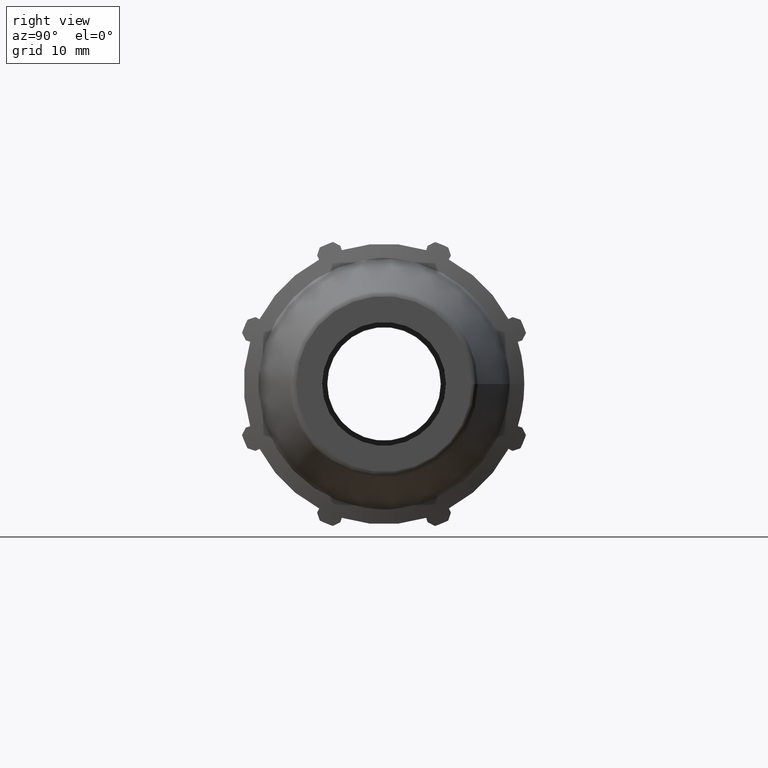
[diagram: clean part render]
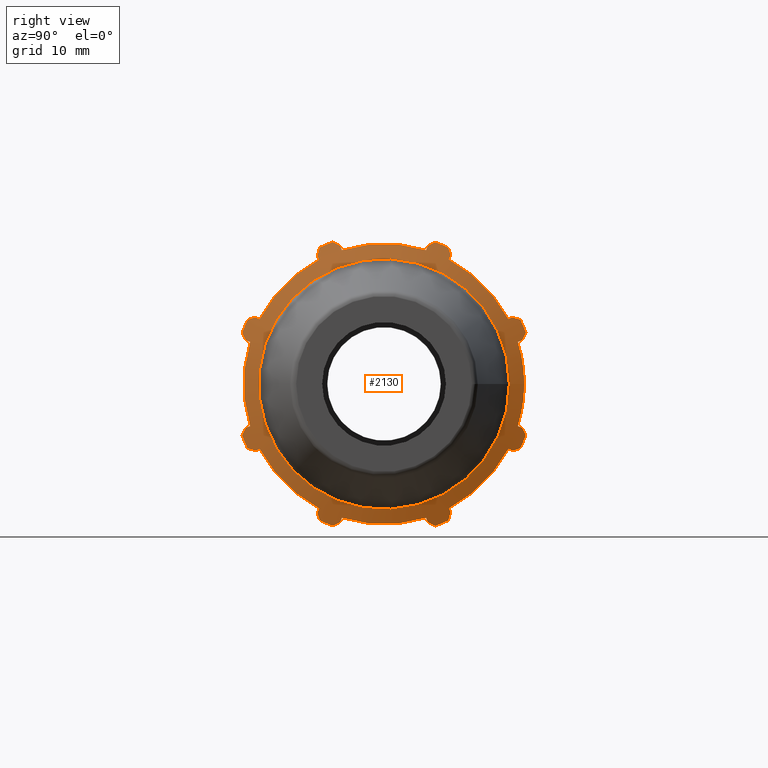
[diagram: same view with one face highlighted and labeled with its STEP entity id]
A machine part, right view. The second image highlights one B-rep face of the part: STEP entity #2130.
In plain terms, the highlighted conical surface has half-angle 72 deg.
Its self-contained STEP definition (entity closure, byte-faithful):
#16=(
BOUNDED_CURVE()
B_SPLINE_CURVE(2,(#3497,#3498,#3499),.UNSPECIFIED.,.F.,.F.)
B_SPLINE_CURVE_WITH_KNOTS((3,3),(0.,0.103440585443577),.UNSPECIFIED.)
CURVE()
GEOMETRIC_REPRESENTATION_ITEM()
RATIONAL_B_SPLINE_CURVE((1.,1.00203522345882,1.00325493632642))
REPRESENTATION_ITEM('')
);
#19=(
BOUNDED_CURVE()
B_SPLINE_CURVE(2,(#3523,#3524,#3525),.UNSPECIFIED.,.F.,.F.)
B_SPLINE_CURVE_WITH_KNOTS((3,3),(0.,0.103440585443561),.UNSPECIFIED.)
CURVE()
GEOMETRIC_REPRESENTATION_ITEM()
RATIONAL_B_SPLINE_CURVE((1.,1.00203522345886,1.00325493632649))
REPRESENTATION_ITEM('')
);
#22=(
BOUNDED_CURVE()
B_SPLINE_CURVE(2,(#3549,#3550,#3551),.UNSPECIFIED.,.F.,.F.)
B_SPLINE_CURVE_WITH_KNOTS((3,3),(0.,0.103440585443582),.UNSPECIFIED.)
CURVE()
GEOMETRIC_REPRESENTATION_ITEM()
RATIONAL_B_SPLINE_CURVE((1.,1.0020352234588,1.00325493632638))
REPRESENTATION_ITEM('')
);
#25=(
BOUNDED_CURVE()
B_SPLINE_CURVE(2,(#3575,#3576,#3577),.UNSPECIFIED.,.F.,.F.)
B_SPLINE_CURVE_WITH_KNOTS((3,3),(0.,0.10344058544357),.UNSPECIFIED.)
CURVE()
GEOMETRIC_REPRESENTATION_ITEM()
RATIONAL_B_SPLINE_CURVE((1.,1.00203522345881,1.0032549363264))
REPRESENTATION_ITEM('')
);
#28=(
BOUNDED_CURVE()
B_SPLINE_CURVE(2,(#3601,#3602,#3603),.UNSPECIFIED.,.F.,.F.)
B_SPLINE_CURVE_WITH_KNOTS((3,3),(0.,0.103440585443579),.UNSPECIFIED.)
CURVE()
GEOMETRIC_REPRESENTATION_ITEM()
RATIONAL_B_SPLINE_CURVE((1.,1.00203522345881,1.0032549363264))
REPRESENTATION_ITEM('')
);
#31=(
BOUNDED_CURVE()
B_SPLINE_CURVE(2,(#3627,#3628,#3629),.UNSPECIFIED.,.F.,.F.)
B_SPLINE_CURVE_WITH_KNOTS((3,3),(0.,0.103440585443574),.UNSPECIFIED.)
CURVE()
GEOMETRIC_REPRESENTATION_ITEM()
RATIONAL_B_SPLINE_CURVE((1.,1.00203522345884,1.00325493632645))
REPRESENTATION_ITEM('')
);
#34=(
BOUNDED_CURVE()
B_SPLINE_CURVE(2,(#3653,#3654,#3655),.UNSPECIFIED.,.F.,.F.)
B_SPLINE_CURVE_WITH_KNOTS((3,3),(0.,0.103440585443567),.UNSPECIFIED.)
CURVE()
GEOMETRIC_REPRESENTATION_ITEM()
RATIONAL_B_SPLINE_CURVE((1.,1.00203522345882,1.00325493632642))
REPRESENTATION_ITEM('')
);
#37=(
BOUNDED_CURVE()
B_SPLINE_CURVE(2,(#3679,#3680,#3681),.UNSPECIFIED.,.F.,.F.)
B_SPLINE_CURVE_WITH_KNOTS((3,3),(0.,0.103440585443564),.UNSPECIFIED.)
CURVE()
GEOMETRIC_REPRESENTATION_ITEM()
RATIONAL_B_SPLINE_CURVE((1.,1.00203522345885,1.00325493632647))
REPRESENTATION_ITEM('')
);
#38=(
BOUNDED_CURVE()
B_SPLINE_CURVE(2,(#3697,#3698,#3699),.UNSPECIFIED.,.F.,.F.)
B_SPLINE_CURVE_WITH_KNOTS((3,3),(0.412861001209201,0.516301586652785),
 .UNSPECIFIED.)
CURVE()
GEOMETRIC_REPRESENTATION_ITEM()
RATIONAL_B_SPLINE_CURVE((1.00325493632634,1.00203522345877,1.))
REPRESENTATION_ITEM('')
);
#39=(
BOUNDED_CURVE()
B_SPLINE_CURVE(2,(#3710,#3711,#3712),.UNSPECIFIED.,.F.,.F.)
B_SPLINE_CURVE_WITH_KNOTS((3,3),(0.412861001209223,0.516301586652783),
 .UNSPECIFIED.)
CURVE()
GEOMETRIC_REPRESENTATION_ITEM()
RATIONAL_B_SPLINE_CURVE((1.00325493632649,1.00203522345886,1.))
REPRESENTATION_ITEM('')
);
#40=(
BOUNDED_CURVE()
B_SPLINE_CURVE(2,(#3719,#3720,#3721),.UNSPECIFIED.,.F.,.F.)
B_SPLINE_CURVE_WITH_KNOTS((3,3),(0.412861001209195,0.516301586652784),
 .UNSPECIFIED.)
CURVE()
GEOMETRIC_REPRESENTATION_ITEM()
RATIONAL_B_SPLINE_CURVE((1.00325493632631,1.00203522345875,1.))
REPRESENTATION_ITEM('')
);
#41=(
BOUNDED_CURVE()
B_SPLINE_CURVE(2,(#3728,#3729,#3730),.UNSPECIFIED.,.F.,.F.)
B_SPLINE_CURVE_WITH_KNOTS((3,3),(0.412861001209219,0.516301586652783),
 .UNSPECIFIED.)
CURVE()
GEOMETRIC_REPRESENTATION_ITEM()
RATIONAL_B_SPLINE_CURVE((1.00325493632647,1.00203522345885,1.))
REPRESENTATION_ITEM('')
);
#42=(
BOUNDED_CURVE()
B_SPLINE_CURVE(2,(#3737,#3738,#3739),.UNSPECIFIED.,.F.,.F.)
B_SPLINE_CURVE_WITH_KNOTS((3,3),(0.412861001209202,0.516301586652782),
 .UNSPECIFIED.)
CURVE()
GEOMETRIC_REPRESENTATION_ITEM()
RATIONAL_B_SPLINE_CURVE((1.00325493632639,1.0020352234588,1.))
REPRESENTATION_ITEM('')
);
#43=(
BOUNDED_CURVE()
B_SPLINE_CURVE(2,(#3746,#3747,#3748),.UNSPECIFIED.,.F.,.F.)
B_SPLINE_CURVE_WITH_KNOTS((3,3),(0.412861001209206,0.516301586652782),
 .UNSPECIFIED.)
CURVE()
GEOMETRIC_REPRESENTATION_ITEM()
RATIONAL_B_SPLINE_CURVE((1.0032549363264,1.0020352234588,1.))
REPRESENTATION_ITEM('')
);
#44=(
BOUNDED_CURVE()
B_SPLINE_CURVE(2,(#3755,#3756,#3757),.UNSPECIFIED.,.F.,.F.)
B_SPLINE_CURVE_WITH_KNOTS((3,3),(0.412861001209206,0.516301586652783),
 .UNSPECIFIED.)
CURVE()
GEOMETRIC_REPRESENTATION_ITEM()
RATIONAL_B_SPLINE_CURVE((1.00325493632642,1.00203522345882,1.))
REPRESENTATION_ITEM('')
);
#45=(
BOUNDED_CURVE()
B_SPLINE_CURVE(2,(#3764,#3765,#3766),.UNSPECIFIED.,.F.,.F.)
B_SPLINE_CURVE_WITH_KNOTS((3,3),(0.412861001209201,0.51630158665278),
 .UNSPECIFIED.)
CURVE()
GEOMETRIC_REPRESENTATION_ITEM()
RATIONAL_B_SPLINE_CURVE((1.00325493632641,1.00203522345882,1.))
REPRESENTATION_ITEM('')
);
#55=CONICAL_SURFACE('',#2321,17.8489960464915,72.);
#123=LINE('',#3492,#267);
#129=LINE('',#3518,#273);
#135=LINE('',#3544,#279);
#141=LINE('',#3570,#285);
#147=LINE('',#3596,#291);
#153=LINE('',#3622,#297);
#159=LINE('',#3648,#303);
#165=LINE('',#3674,#309);
#171=LINE('',#3704,#315);
#172=LINE('',#3714,#316);
#173=LINE('',#3723,#317);
#174=LINE('',#3732,#318);
#175=LINE('',#3741,#319);
#176=LINE('',#3750,#320);
#177=LINE('',#3759,#321);
#178=LINE('',#3768,#322);
#267=VECTOR('',#2670,0.615105401179383);
#273=VECTOR('',#2684,0.615105401179381);
#279=VECTOR('',#2698,0.615105401179381);
#285=VECTOR('',#2712,0.615105401179378);
#291=VECTOR('',#2726,0.615105401179381);
#297=VECTOR('',#2740,0.615105401179379);
#303=VECTOR('',#2754,0.615105401179381);
#309=VECTOR('',#2768,0.615105401179381);
#315=VECTOR('',#2794,0.615105401179385);
#316=VECTOR('',#2801,0.615105401179389);
#317=VECTOR('',#2806,0.615105401179385);
#318=VECTOR('',#2811,0.615105401179389);
#319=VECTOR('',#2816,0.615105401179385);
#320=VECTOR('',#2821,0.615105401179384);
#321=VECTOR('',#2826,0.615105401179385);
#322=VECTOR('',#2831,0.615105401179381);
#477=FACE_BOUND('',#695,.T.);
#560=FACE_OUTER_BOUND('',#694,.T.);
#694=EDGE_LOOP('',(#1712,#1713,#1714,#1715,#1716,#1717,#1718,#1719,#1720,
#1721,#1722,#1723,#1724,#1725,#1726,#1727,#1728,#1729,#1730,#1731,#1732,
#1733,#1734,#1735,#1736,#1737,#1738,#1739,#1740,#1741,#1742,#1743,#1744,
#1745,#1746,#1747,#1748,#1749,#1750,#1751,#1752,#1753,#1754,#1755,#1756,
#1757,#1758,#1759));
#695=EDGE_LOOP('',(#1760));
#816=CIRCLE('',#2322,18.135);
#817=CIRCLE('',#2323,19.5);
#818=CIRCLE('',#2324,18.135);
#819=CIRCLE('',#2325,19.5);
#820=CIRCLE('',#2326,18.135);
#821=CIRCLE('',#2327,19.5);
#822=CIRCLE('',#2328,18.135);
#823=CIRCLE('',#2329,19.5);
#824=CIRCLE('',#2330,18.135);
#825=CIRCLE('',#2331,19.5);
#826=CIRCLE('',#2332,18.135);
#827=CIRCLE('',#2333,19.5);
#828=CIRCLE('',#2334,18.135);
#829=CIRCLE('',#2335,19.5);
#830=CIRCLE('',#2336,18.135);
#831=CIRCLE('',#2337,19.5);
#832=CIRCLE('',#2338,16.1979920929829);
#954=VERTEX_POINT('',#3489);
#955=VERTEX_POINT('',#3491);
#956=VERTEX_POINT('',#3495);
#961=VERTEX_POINT('',#3515);
#962=VERTEX_POINT('',#3517);
#963=VERTEX_POINT('',#3521);
#968=VERTEX_POINT('',#3541);
#969=VERTEX_POINT('',#3543);
#970=VERTEX_POINT('',#3547);
#975=VERTEX_POINT('',#3567);
#976=VERTEX_POINT('',#3569);
#977=VERTEX_POINT('',#3573);
#982=VERTEX_POINT('',#3593);
#983=VERTEX_POINT('',#3595);
#984=VERTEX_POINT('',#3599);
#989=VERTEX_POINT('',#3619);
#990=VERTEX_POINT('',#3621);
#991=VERTEX_POINT('',#3625);
#996=VERTEX_POINT('',#3645);
#997=VERTEX_POINT('',#3647);
#998=VERTEX_POINT('',#3651);
#1003=VERTEX_POINT('',#3671);
#1004=VERTEX_POINT('',#3673);
#1005=VERTEX_POINT('',#3677);
#1010=VERTEX_POINT('',#3694);
#1011=VERTEX_POINT('',#3696);
#1012=VERTEX_POINT('',#3702);
#1013=VERTEX_POINT('',#3707);
#1014=VERTEX_POINT('',#3709);
#1015=VERTEX_POINT('',#3713);
#1016=VERTEX_POINT('',#3716);
#1017=VERTEX_POINT('',#3718);
#1018=VERTEX_POINT('',#3722);
#1019=VERTEX_POINT('',#3725);
#1020=VERTEX_POINT('',#3727);
#1021=VERTEX_POINT('',#3731);
#1022=VERTEX_POINT('',#3734);
#1023=VERTEX_POINT('',#3736);
#1024=VERTEX_POINT('',#3740);
#1025=VERTEX_POINT('',#3743);
#1026=VERTEX_POINT('',#3745);
#1027=VERTEX_POINT('',#3749);
#1028=VERTEX_POINT('',#3752);
#1029=VERTEX_POINT('',#3754);
#1030=VERTEX_POINT('',#3758);
#1031=VERTEX_POINT('',#3761);
#1032=VERTEX_POINT('',#3763);
#1033=VERTEX_POINT('',#3767);
#1034=VERTEX_POINT('',#3771);
#1192=EDGE_CURVE('',#955,#954,#123,.T.);
#1195=EDGE_CURVE('',#956,#954,#16,.T.);
#1202=EDGE_CURVE('',#962,#961,#129,.T.);
#1205=EDGE_CURVE('',#963,#961,#19,.T.);
#1212=EDGE_CURVE('',#969,#968,#135,.T.);
#1215=EDGE_CURVE('',#970,#968,#22,.T.);
#1222=EDGE_CURVE('',#976,#975,#141,.T.);
#1225=EDGE_CURVE('',#977,#975,#25,.T.);
#1232=EDGE_CURVE('',#983,#982,#147,.T.);
#1235=EDGE_CURVE('',#984,#982,#28,.T.);
#1242=EDGE_CURVE('',#990,#989,#153,.T.);
#1245=EDGE_CURVE('',#991,#989,#31,.T.);
#1252=EDGE_CURVE('',#997,#996,#159,.T.);
#1255=EDGE_CURVE('',#998,#996,#34,.T.);
#1262=EDGE_CURVE('',#1004,#1003,#165,.T.);
#1265=EDGE_CURVE('',#1005,#1003,#37,.T.);
#1271=EDGE_CURVE('',#1010,#1011,#38,.T.);
#1274=EDGE_CURVE('',#1010,#1012,#171,.T.);
#1275=EDGE_CURVE('',#1012,#997,#816,.T.);
#1276=EDGE_CURVE('',#998,#1013,#817,.T.);
#1277=EDGE_CURVE('',#1014,#1013,#39,.T.);
#1278=EDGE_CURVE('',#1014,#1015,#172,.T.);
#1279=EDGE_CURVE('',#1015,#1004,#818,.T.);
#1280=EDGE_CURVE('',#1005,#1016,#819,.T.);
#1281=EDGE_CURVE('',#1017,#1016,#40,.T.);
#1282=EDGE_CURVE('',#1017,#1018,#173,.T.);
#1283=EDGE_CURVE('',#1018,#955,#820,.T.);
#1284=EDGE_CURVE('',#956,#1019,#821,.T.);
#1285=EDGE_CURVE('',#1020,#1019,#41,.T.);
#1286=EDGE_CURVE('',#1020,#1021,#174,.T.);
#1287=EDGE_CURVE('',#1021,#962,#822,.T.);
#1288=EDGE_CURVE('',#963,#1022,#823,.T.);
#1289=EDGE_CURVE('',#1023,#1022,#42,.T.);
#1290=EDGE_CURVE('',#1023,#1024,#175,.T.);
#1291=EDGE_CURVE('',#1024,#969,#824,.T.);
#1292=EDGE_CURVE('',#970,#1025,#825,.T.);
#1293=EDGE_CURVE('',#1026,#1025,#43,.T.);
#1294=EDGE_CURVE('',#1026,#1027,#176,.T.);
#1295=EDGE_CURVE('',#1027,#976,#826,.T.);
#1296=EDGE_CURVE('',#977,#1028,#827,.T.);
#1297=EDGE_CURVE('',#1029,#1028,#44,.T.);
#1298=EDGE_CURVE('',#1029,#1030,#177,.T.);
#1299=EDGE_CURVE('',#1030,#983,#828,.T.);
#1300=EDGE_CURVE('',#984,#1031,#829,.T.);
#1301=EDGE_CURVE('',#1032,#1031,#45,.T.);
#1302=EDGE_CURVE('',#1032,#1033,#178,.T.);
#1303=EDGE_CURVE('',#1033,#990,#830,.T.);
#1304=EDGE_CURVE('',#991,#1011,#831,.T.);
#1305=EDGE_CURVE('',#1034,#1034,#832,.T.);
#1712=ORIENTED_EDGE('',*,*,#1271,.F.);
#1713=ORIENTED_EDGE('',*,*,#1274,.T.);
#1714=ORIENTED_EDGE('',*,*,#1275,.T.);
#1715=ORIENTED_EDGE('',*,*,#1252,.T.);
#1716=ORIENTED_EDGE('',*,*,#1255,.F.);
#1717=ORIENTED_EDGE('',*,*,#1276,.T.);
#1718=ORIENTED_EDGE('',*,*,#1277,.F.);
#1719=ORIENTED_EDGE('',*,*,#1278,.T.);
#1720=ORIENTED_EDGE('',*,*,#1279,.T.);
#1721=ORIENTED_EDGE('',*,*,#1262,.T.);
#1722=ORIENTED_EDGE('',*,*,#1265,.F.);
#1723=ORIENTED_EDGE('',*,*,#1280,.T.);
#1724=ORIENTED_EDGE('',*,*,#1281,.F.);
#1725=ORIENTED_EDGE('',*,*,#1282,.T.);
#1726=ORIENTED_EDGE('',*,*,#1283,.T.);
#1727=ORIENTED_EDGE('',*,*,#1192,.T.);
#1728=ORIENTED_EDGE('',*,*,#1195,.F.);
#1729=ORIENTED_EDGE('',*,*,#1284,.T.);
#1730=ORIENTED_EDGE('',*,*,#1285,.F.);
#1731=ORIENTED_EDGE('',*,*,#1286,.T.);
#1732=ORIENTED_EDGE('',*,*,#1287,.T.);
#1733=ORIENTED_EDGE('',*,*,#1202,.T.);
#1734=ORIENTED_EDGE('',*,*,#1205,.F.);
#1735=ORIENTED_EDGE('',*,*,#1288,.T.);
#1736=ORIENTED_EDGE('',*,*,#1289,.F.);
#1737=ORIENTED_EDGE('',*,*,#1290,.T.);
#1738=ORIENTED_EDGE('',*,*,#1291,.T.);
#1739=ORIENTED_EDGE('',*,*,#1212,.T.);
#1740=ORIENTED_EDGE('',*,*,#1215,.F.);
#1741=ORIENTED_EDGE('',*,*,#1292,.T.);
#1742=ORIENTED_EDGE('',*,*,#1293,.F.);
#1743=ORIENTED_EDGE('',*,*,#1294,.T.);
#1744=ORIENTED_EDGE('',*,*,#1295,.T.);
#1745=ORIENTED_EDGE('',*,*,#1222,.T.);
#1746=ORIENTED_EDGE('',*,*,#1225,.F.);
#1747=ORIENTED_EDGE('',*,*,#1296,.T.);
#1748=ORIENTED_EDGE('',*,*,#1297,.F.);
#1749=ORIENTED_EDGE('',*,*,#1298,.T.);
#1750=ORIENTED_EDGE('',*,*,#1299,.T.);
#1751=ORIENTED_EDGE('',*,*,#1232,.T.);
#1752=ORIENTED_EDGE('',*,*,#1235,.F.);
#1753=ORIENTED_EDGE('',*,*,#1300,.T.);
#1754=ORIENTED_EDGE('',*,*,#1301,.F.);
#1755=ORIENTED_EDGE('',*,*,#1302,.T.);
#1756=ORIENTED_EDGE('',*,*,#1303,.T.);
#1757=ORIENTED_EDGE('',*,*,#1242,.T.);
#1758=ORIENTED_EDGE('',*,*,#1245,.F.);
#1759=ORIENTED_EDGE('',*,*,#1304,.T.);
#1760=ORIENTED_EDGE('',*,*,#1305,.F.);
#2130=ADVANCED_FACE('',(#560,#477),#55,.T.);
#2321=AXIS2_PLACEMENT_3D('',#3705,#2795,#2796);
#2322=AXIS2_PLACEMENT_3D('',#3706,#2797,#2798);
#2323=AXIS2_PLACEMENT_3D('',#3708,#2799,#2800);
#2324=AXIS2_PLACEMENT_3D('',#3715,#2802,#2803);
#2325=AXIS2_PLACEMENT_3D('',#3717,#2804,#2805);
#2326=AXIS2_PLACEMENT_3D('',#3724,#2807,#2808);
#2327=AXIS2_PLACEMENT_3D('',#3726,#2809,#2810);
#2328=AXIS2_PLACEMENT_3D('',#3733,#2812,#2813);
#2329=AXIS2_PLACEMENT_3D('',#3735,#2814,#2815);
#2330=AXIS2_PLACEMENT_3D('',#3742,#2817,#2818);
#2331=AXIS2_PLACEMENT_3D('',#3744,#2819,#2820);
#2332=AXIS2_PLACEMENT_3D('',#3751,#2822,#2823);
#2333=AXIS2_PLACEMENT_3D('',#3753,#2824,#2825);
#2334=AXIS2_PLACEMENT_3D('',#3760,#2827,#2828);
#2335=AXIS2_PLACEMENT_3D('',#3762,#2829,#2830);
#2336=AXIS2_PLACEMENT_3D('',#3769,#2832,#2833);
#2337=AXIS2_PLACEMENT_3D('',#3770,#2834,#2835);
#2338=AXIS2_PLACEMENT_3D('',#3772,#2836,#2837);
#2670=DIRECTION('',(-0.309016994374948,-0.285988210106283,0.907038720710245));
#2684=DIRECTION('',(-0.309016994374948,-0.843597432918541,0.43914902750743));
#2698=DIRECTION('',(-0.309016994374948,-0.907038720710245,-0.285988210106283));
#2712=DIRECTION('',(-0.309016994374948,-0.43914902750743,-0.843597432918541));
#2726=DIRECTION('',(-0.309016994374948,0.285988210106283,-0.907038720710245));
#2740=DIRECTION('',(-0.309016994374948,0.843597432918541,-0.43914902750743));
#2754=DIRECTION('',(-0.309016994374948,0.907038720710245,0.285988210106283));
#2768=DIRECTION('',(-0.309016994374948,0.43914902750743,0.843597432918541));
#2794=DIRECTION('',(0.309016994374948,-0.907038720710245,0.285988210106283));
#2795=DIRECTION('center_axis',(-1.,0.,0.));
#2796=DIRECTION('ref_axis',(0.,1.,0.));
#2797=DIRECTION('center_axis',(1.,0.,0.));
#2798=DIRECTION('ref_axis',(0.,-0.953716950748227,-0.300705799504273));
#2799=DIRECTION('center_axis',(1.,0.,0.));
#2800=DIRECTION('ref_axis',(0.,0.,-1.));
#2801=DIRECTION('',(0.309016994374948,-0.843597432918541,-0.43914902750743));
#2802=DIRECTION('center_axis',(1.,0.,0.));
#2803=DIRECTION('ref_axis',(0.,-0.461748613235034,-0.887010833178222));
#2804=DIRECTION('center_axis',(1.,0.,0.));
#2805=DIRECTION('ref_axis',(0.,0.,-1.));
#2806=DIRECTION('',(0.309016994374948,-0.285988210106283,-0.907038720710245));
#2807=DIRECTION('center_axis',(1.,0.,0.));
#2808=DIRECTION('ref_axis',(0.,0.300705799504273,-0.953716950748227));
#2809=DIRECTION('center_axis',(1.,0.,0.));
#2810=DIRECTION('ref_axis',(0.,0.,-1.));
#2811=DIRECTION('',(0.309016994374948,0.43914902750743,-0.843597432918541));
#2812=DIRECTION('center_axis',(1.,0.,0.));
#2813=DIRECTION('ref_axis',(0.,0.887010833178222,-0.461748613235034));
#2814=DIRECTION('center_axis',(1.,0.,0.));
#2815=DIRECTION('ref_axis',(0.,0.,-1.));
#2816=DIRECTION('',(0.309016994374948,0.907038720710245,-0.285988210106283));
#2817=DIRECTION('center_axis',(1.,0.,0.));
#2818=DIRECTION('ref_axis',(0.,0.953716950748227,0.300705799504273));
#2819=DIRECTION('center_axis',(1.,0.,0.));
#2820=DIRECTION('ref_axis',(0.,0.,-1.));
#2821=DIRECTION('',(0.309016994374948,0.843597432918541,0.439149027507429));
#2822=DIRECTION('center_axis',(1.,0.,0.));
#2823=DIRECTION('ref_axis',(0.,0.461748613235034,0.887010833178222));
#2824=DIRECTION('center_axis',(1.,0.,0.));
#2825=DIRECTION('ref_axis',(0.,0.,-1.));
#2826=DIRECTION('',(0.309016994374948,0.285988210106283,0.907038720710245));
#2827=DIRECTION('center_axis',(1.,0.,0.));
#2828=DIRECTION('ref_axis',(0.,-0.300705799504273,0.953716950748227));
#2829=DIRECTION('center_axis',(1.,0.,0.));
#2830=DIRECTION('ref_axis',(0.,0.,-1.));
#2831=DIRECTION('',(0.309016994374948,-0.439149027507429,0.843597432918541));
#2832=DIRECTION('center_axis',(1.,0.,0.));
#2833=DIRECTION('ref_axis',(0.,-0.887010833178222,0.461748613235034));
#2834=DIRECTION('center_axis',(1.,0.,0.));
#2835=DIRECTION('ref_axis',(0.,0.,-1.));
#2836=DIRECTION('center_axis',(1.,0.,0.));
#2837=DIRECTION('ref_axis',(0.,0.,-1.));
#3489=CARTESIAN_POINT('',(58.430549956955,-5.62921256671999,17.8535813180068));
#3491=CARTESIAN_POINT('',(58.6206279792513,-5.45329967400999,17.2956569018191));
#3492=CARTESIAN_POINT('',(58.7135562969467,-5.36729662650883,17.022890083377));
#3495=CARTESIAN_POINT('',(58.1771125938934,-6.6028225067194,18.3480989463421));
#3497=CARTESIAN_POINT('Ctrl Pts',(58.1771125938934,-6.60282250671941,18.3480989463421));
#3498=CARTESIAN_POINT('Ctrl Pts',(58.3089000226854,-6.10608274141362,18.0957940339262));
#3499=CARTESIAN_POINT('Ctrl Pts',(58.430549956955,-5.62921256671999,17.8535813180068));
#3515=CARTESIAN_POINT('',(58.430549956955,-16.6048427970963,8.64393403975984));
#3517=CARTESIAN_POINT('',(58.6206279792513,-16.0859414596871,8.37381110101734));
#3518=CARTESIAN_POINT('',(58.7135562969467,-15.8322528545932,8.24174917210504));
#3521=CARTESIAN_POINT('',(58.1771125938934,-17.6429657563127,8.3051646173678));
#3523=CARTESIAN_POINT('Ctrl Pts',(58.1771125938934,-17.6429657563127,8.30516461736779));
#3524=CARTESIAN_POINT('Ctrl Pts',(58.3089000226854,-17.1133111852839,8.47800615940455));
#3525=CARTESIAN_POINT('Ctrl Pts',(58.430549956955,-16.6048427970963,8.64393403975984));
#3541=CARTESIAN_POINT('',(58.430549956955,-17.8535813180068,-5.62921256671999));
#3543=CARTESIAN_POINT('',(58.6206279792513,-17.2956569018191,-5.45329967400999));
#3544=CARTESIAN_POINT('',(58.7135562969467,-17.022890083377,-5.36729662650883));
#3547=CARTESIAN_POINT('',(58.1771125938934,-18.3480989463421,-6.6028225067194));
#3549=CARTESIAN_POINT('Ctrl Pts',(58.1771125938934,-18.3480989463421,-6.60282250671941));
#3550=CARTESIAN_POINT('Ctrl Pts',(58.3089000226854,-18.0957940339262,-6.10608274141364));
#3551=CARTESIAN_POINT('Ctrl Pts',(58.430549956955,-17.8535813180068,-5.62921256671999));
#3567=CARTESIAN_POINT('',(58.430549956955,-8.64393403975984,-16.6048427970963));
#3569=CARTESIAN_POINT('',(58.6206279792513,-8.37381110101735,-16.0859414596871));
#3570=CARTESIAN_POINT('',(58.7135562969467,-8.24174917210504,-15.8322528545932));
#3573=CARTESIAN_POINT('',(58.1771125938934,-8.3051646173678,-17.6429657563127));
#3575=CARTESIAN_POINT('Ctrl Pts',(58.1771125938934,-8.30516461736779,-17.6429657563127));
#3576=CARTESIAN_POINT('Ctrl Pts',(58.3089000226854,-8.47800615940454,-17.113311185284));
#3577=CARTESIAN_POINT('Ctrl Pts',(58.430549956955,-8.64393403975983,-16.6048427970963));
#3593=CARTESIAN_POINT('',(58.430549956955,5.62921256671999,-17.8535813180068));
#3595=CARTESIAN_POINT('',(58.6206279792513,5.45329967400999,-17.2956569018191));
#3596=CARTESIAN_POINT('',(58.7135562969467,5.36729662650883,-17.022890083377));
#3599=CARTESIAN_POINT('',(58.1771125938934,6.6028225067194,-18.3480989463421));
#3601=CARTESIAN_POINT('Ctrl Pts',(58.1771125938934,6.60282250671941,-18.3480989463421));
#3602=CARTESIAN_POINT('Ctrl Pts',(58.3089000226854,6.10608274141363,-18.0957940339262));
#3603=CARTESIAN_POINT('Ctrl Pts',(58.430549956955,5.62921256671999,-17.8535813180068));
#3619=CARTESIAN_POINT('',(58.430549956955,16.6048427970963,-8.64393403975984));
#3621=CARTESIAN_POINT('',(58.6206279792513,16.0859414596871,-8.37381110101735));
#3622=CARTESIAN_POINT('',(58.7135562969467,15.8322528545932,-8.24174917210504));
#3625=CARTESIAN_POINT('',(58.1771125938934,17.6429657563127,-8.3051646173678));
#3627=CARTESIAN_POINT('Ctrl Pts',(58.1771125938934,17.6429657563127,-8.30516461736779));
#3628=CARTESIAN_POINT('Ctrl Pts',(58.3089000226854,17.113311185284,-8.47800615940454));
#3629=CARTESIAN_POINT('Ctrl Pts',(58.430549956955,16.6048427970963,-8.64393403975984));
#3645=CARTESIAN_POINT('',(58.430549956955,17.8535813180068,5.62921256672));
#3647=CARTESIAN_POINT('',(58.6206279792513,17.2956569018191,5.45329967401));
#3648=CARTESIAN_POINT('',(58.7135562969467,17.022890083377,5.36729662650883));
#3651=CARTESIAN_POINT('',(58.1771125938934,18.3480989463421,6.6028225067194));
#3653=CARTESIAN_POINT('Ctrl Pts',(58.1771125938934,18.3480989463421,6.60282250671942));
#3654=CARTESIAN_POINT('Ctrl Pts',(58.3089000226854,18.0957940339262,6.10608274141361));
#3655=CARTESIAN_POINT('Ctrl Pts',(58.430549956955,17.8535813180068,5.62921256672));
#3671=CARTESIAN_POINT('',(58.430549956955,8.64393403975984,16.6048427970963));
#3673=CARTESIAN_POINT('',(58.6206279792513,8.37381110101734,16.0859414596871));
#3674=CARTESIAN_POINT('',(58.7135562969467,8.24174917210504,15.8322528545932));
#3677=CARTESIAN_POINT('',(58.1771125938934,8.3051646173678,17.6429657563127));
#3679=CARTESIAN_POINT('Ctrl Pts',(58.1771125938934,8.30516461736779,17.6429657563127));
#3680=CARTESIAN_POINT('Ctrl Pts',(58.3089000226854,8.47800615940455,17.1133111852839));
#3681=CARTESIAN_POINT('Ctrl Pts',(58.430549956955,8.64393403975984,16.6048427970963));
#3694=CARTESIAN_POINT('',(58.430549956955,17.8535813180068,-5.62921256671999));
#3696=CARTESIAN_POINT('',(58.1771125938934,18.3480989463421,-6.6028225067194));
#3697=CARTESIAN_POINT('Ctrl Pts',(58.430549956955,17.8535813180068,-5.62921256671999));
#3698=CARTESIAN_POINT('Ctrl Pts',(58.3089000226854,18.0957940339262,-6.10608274141366));
#3699=CARTESIAN_POINT('Ctrl Pts',(58.1771125938934,18.3480989463421,-6.60282250671942));
#3702=CARTESIAN_POINT('',(58.6206279792513,17.2956569018191,-5.45329967400999));
#3704=CARTESIAN_POINT('',(58.7135562969467,17.022890083377,-5.36729662650883));
#3705=CARTESIAN_POINT('Origin',(58.7135562969467,0.,0.));
#3706=CARTESIAN_POINT('Origin',(58.6206279792513,0.,0.));
#3707=CARTESIAN_POINT('',(58.1771125938934,17.6429657563127,8.3051646173678));
#3708=CARTESIAN_POINT('Origin',(58.1771125938934,0.,0.));
#3709=CARTESIAN_POINT('',(58.430549956955,16.6048427970963,8.64393403975984));
#3710=CARTESIAN_POINT('Ctrl Pts',(58.430549956955,16.6048427970963,8.64393403975984));
#3711=CARTESIAN_POINT('Ctrl Pts',(58.3089000226854,17.1133111852839,8.47800615940455));
#3712=CARTESIAN_POINT('Ctrl Pts',(58.1771125938934,17.6429657563127,8.30516461736779));
#3713=CARTESIAN_POINT('',(58.6206279792513,16.0859414596871,8.37381110101734));
#3714=CARTESIAN_POINT('',(58.7135562969467,15.8322528545932,8.24174917210504));
#3715=CARTESIAN_POINT('Origin',(58.6206279792513,0.,0.));
#3716=CARTESIAN_POINT('',(58.1771125938934,6.6028225067194,18.3480989463421));
#3717=CARTESIAN_POINT('Origin',(58.1771125938934,0.,0.));
#3718=CARTESIAN_POINT('',(58.430549956955,5.62921256671999,17.8535813180068));
#3719=CARTESIAN_POINT('Ctrl Pts',(58.430549956955,5.62921256671999,17.8535813180068));
#3720=CARTESIAN_POINT('Ctrl Pts',(58.3089000226854,6.10608274141367,18.0957940339262));
#3721=CARTESIAN_POINT('Ctrl Pts',(58.1771125938934,6.60282250671942,18.3480989463421));
#3722=CARTESIAN_POINT('',(58.6206279792513,5.45329967400999,17.2956569018191));
#3723=CARTESIAN_POINT('',(58.7135562969467,5.36729662650883,17.022890083377));
#3724=CARTESIAN_POINT('Origin',(58.6206279792513,0.,0.));
#3725=CARTESIAN_POINT('',(58.1771125938934,-8.3051646173678,17.6429657563127));
#3726=CARTESIAN_POINT('Origin',(58.1771125938934,0.,0.));
#3727=CARTESIAN_POINT('',(58.430549956955,-8.64393403975984,16.6048427970963));
#3728=CARTESIAN_POINT('Ctrl Pts',(58.430549956955,-8.64393403975984,16.6048427970963));
#3729=CARTESIAN_POINT('Ctrl Pts',(58.3089000226854,-8.47800615940455,17.1133111852839));
#3730=CARTESIAN_POINT('Ctrl Pts',(58.1771125938934,-8.30516461736779,17.6429657563127));
#3731=CARTESIAN_POINT('',(58.6206279792513,-8.37381110101734,16.0859414596871));
#3732=CARTESIAN_POINT('',(58.7135562969467,-8.24174917210504,15.8322528545932));
#3733=CARTESIAN_POINT('Origin',(58.6206279792513,0.,0.));
#3734=CARTESIAN_POINT('',(58.1771125938934,-18.3480989463421,6.6028225067194));
#3735=CARTESIAN_POINT('Origin',(58.1771125938934,0.,0.));
#3736=CARTESIAN_POINT('',(58.430549956955,-17.8535813180068,5.62921256671999));
#3737=CARTESIAN_POINT('Ctrl Pts',(58.430549956955,-17.8535813180068,5.62921256671999));
#3738=CARTESIAN_POINT('Ctrl Pts',(58.3089000226854,-18.0957940339262,6.10608274141364));
#3739=CARTESIAN_POINT('Ctrl Pts',(58.1771125938934,-18.3480989463421,6.60282250671941));
#3740=CARTESIAN_POINT('',(58.6206279792513,-17.2956569018191,5.45329967401));
#3741=CARTESIAN_POINT('',(58.7135562969467,-17.022890083377,5.36729662650883));
#3742=CARTESIAN_POINT('Origin',(58.6206279792513,0.,0.));
#3743=CARTESIAN_POINT('',(58.1771125938934,-17.6429657563127,-8.3051646173678));
#3744=CARTESIAN_POINT('Origin',(58.1771125938934,0.,0.));
#3745=CARTESIAN_POINT('',(58.430549956955,-16.6048427970963,-8.64393403975984));
#3746=CARTESIAN_POINT('Ctrl Pts',(58.430549956955,-16.6048427970963,-8.64393403975984));
#3747=CARTESIAN_POINT('Ctrl Pts',(58.3089000226854,-17.113311185284,-8.47800615940453));
#3748=CARTESIAN_POINT('Ctrl Pts',(58.1771125938934,-17.6429657563127,-8.30516461736779));
#3749=CARTESIAN_POINT('',(58.6206279792513,-16.0859414596871,-8.37381110101734));
#3750=CARTESIAN_POINT('',(58.7135562969467,-15.8322528545932,-8.24174917210504));
#3751=CARTESIAN_POINT('Origin',(58.6206279792513,0.,0.));
#3752=CARTESIAN_POINT('',(58.1771125938934,-6.6028225067194,-18.3480989463421));
#3753=CARTESIAN_POINT('Origin',(58.1771125938934,0.,0.));
#3754=CARTESIAN_POINT('',(58.430549956955,-5.62921256671999,-17.8535813180068));
#3755=CARTESIAN_POINT('Ctrl Pts',(58.430549956955,-5.62921256671999,-17.8535813180068));
#3756=CARTESIAN_POINT('Ctrl Pts',(58.3089000226854,-6.10608274141362,-18.0957940339262));
#3757=CARTESIAN_POINT('Ctrl Pts',(58.1771125938934,-6.60282250671941,-18.3480989463421));
#3758=CARTESIAN_POINT('',(58.6206279792513,-5.45329967401,-17.2956569018191));
#3759=CARTESIAN_POINT('',(58.7135562969467,-5.36729662650883,-17.022890083377));
#3760=CARTESIAN_POINT('Origin',(58.6206279792513,0.,0.));
#3761=CARTESIAN_POINT('',(58.1771125938934,8.30516461736779,-17.6429657563127));
#3762=CARTESIAN_POINT('Origin',(58.1771125938934,0.,0.));
#3763=CARTESIAN_POINT('',(58.430549956955,8.64393403975983,-16.6048427970963));
#3764=CARTESIAN_POINT('Ctrl Pts',(58.430549956955,8.64393403975983,-16.6048427970963));
#3765=CARTESIAN_POINT('Ctrl Pts',(58.3089000226854,8.47800615940453,-17.113311185284));
#3766=CARTESIAN_POINT('Ctrl Pts',(58.1771125938934,8.30516461736779,-17.6429657563127));
#3767=CARTESIAN_POINT('',(58.6206279792513,8.37381110101734,-16.0859414596871));
#3768=CARTESIAN_POINT('',(58.7135562969467,8.24174917210504,-15.8322528545932));
#3769=CARTESIAN_POINT('Origin',(58.6206279792513,0.,0.));
#3770=CARTESIAN_POINT('Origin',(58.1771125938934,0.,0.));
#3771=CARTESIAN_POINT('',(59.25,16.1979920929829,0.));
#3772=CARTESIAN_POINT('Origin',(59.25,0.,0.));